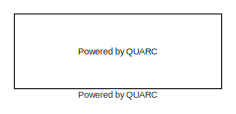
[diagram: root canvas - part 1/3, top left region]
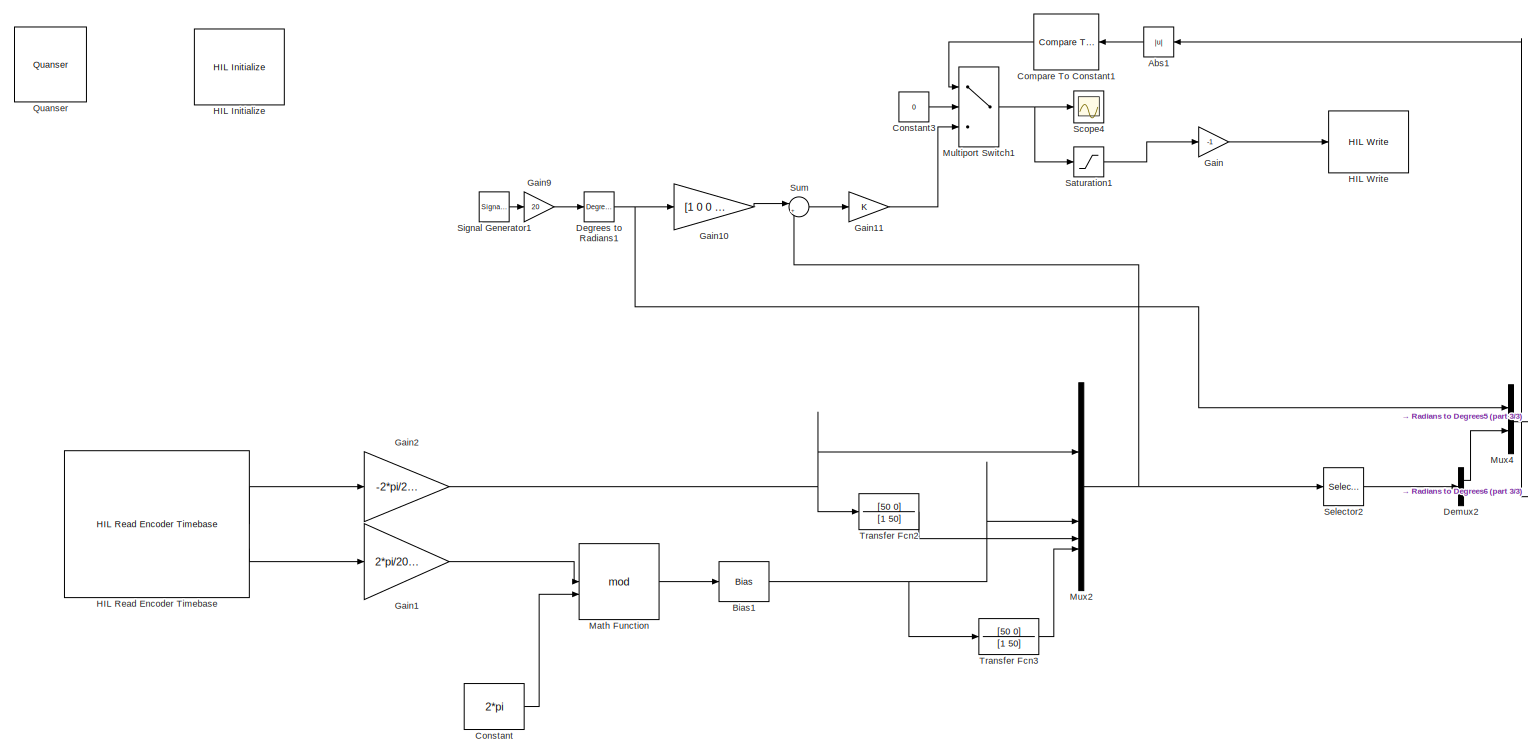
[diagram: root canvas - part 2/3, most of the canvas]
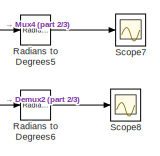
[diagram: root canvas - part 3/3, bottom right region]
MODEL slx_576fdb4bde6e
KIND model
CONFIG AbsTol = auto
CONFIG EnableMultiTasking = on
CONFIG FixedStep = 0.002
CONFIG MaxStep = auto
CONFIG MinStep = auto
CONFIG RelTol = 1e-3
CONFIG SampleTimeConstraint = Unconstrained
CONFIG SolverName = FixedStepDiscrete
CONFIG StartTime = 0.0
CONFIG StopTime = inf
BLOCK [Abs] Abs1
  NameLocation = top
  SaturateOnIntegerOverflow = off
BLOCK [Bias] Bias1
  Bias = -pi
  SaturateOnIntegerOverflow = off
BLOCK [Reference] Compare To Constant1  REF=simulink/Logic and Bit
Operations/Compare
To Constant
  NameLocation = top
  SourceBlock = simulink/Logic and Bit\nOperations/Compare\nTo Constant
  SourceType = Compare To Constant
BLOCK [Constant] Constant
  Value = 2*pi
BLOCK [Constant] Constant3
  Value = 0
BLOCK [Reference] Degrees to Radians1  REF=simulink_extras/Transformations/Degrees to
Radians
  SourceBlock = simulink_extras/Transformations/Degrees to\nRadians
  SourceType = DegreesToRadians
BLOCK [Demux] Demux2
  Outputs = 2
BLOCK [Gain] Gain
  Gain = -1
BLOCK [Gain] Gain1
  Gain = 2*pi/2048
BLOCK [Gain] Gain10
  Gain = [1 0 0 0]
BLOCK [Gain] Gain11
  Gain = K
  Multiplication = Matrix(K*u)
BLOCK [Gain] Gain2
  Gain = -2*pi/2048
BLOCK [Gain] Gain9
  Gain = 20
BLOCK [Reference] HIL Initialize  REF=quarc_library/Data Acquisition/Generic/Configuration/HIL Initialize
  AttributesFormatString = %<object_name> (%<board_type>-%<board_number>)
  SourceBlock = quarc_library/Data Acquisition/Generic/Configuration/HIL Initialize
  SourceProductName = QUARC Targets
  SourceType = HIL Initialize
  UserDataPersistent = on
BLOCK [Reference] HIL Read Encoder Timebase  REF=quarc_library/Data Acquisition/Generic/Timebases/HIL Read Encoder
Timebase
  AttributesFormatString = (%<object_name>)
  SourceBlock = quarc_library/Data Acquisition/Generic/Timebases/HIL Read Encoder\nTimebase
  SourceProductName = QUARC Targets
  SourceType = HIL Read Encoder Timebase
  UserDataPersistent = on
BLOCK [Reference] HIL Write  REF=quarc_library/Data Acquisition/Generic/Immediate I//O/HIL Write
  AttributesFormatString = (%<object_name>)
  SourceBlock = quarc_library/Data Acquisition/Generic/Immediate I//O/HIL Write
  SourceProductName = QUARC Targets
  SourceType = HIL Write
  UserDataPersistent = on
BLOCK [Math] Math Function
  Operator = mod
BLOCK [MultiPortSwitch] Multiport Switch1
  DataPortOrder = Zero-based contiguous
  InputSameDT = off
  Inputs = 2
  SaturateOnIntegerOverflow = off
  zeroidx = on
BLOCK [Mux] Mux2
  DisplayOption = bar
BLOCK [Mux] Mux4
  DisplayOption = bar
  Inputs = 2
BLOCK [Reference] Powered by QUARC  REF=quarc_library/Logos/Powered by QUARC
  SourceBlock = quarc_library/Logos/Powered by QUARC
  SourceProductName = QUARC Targets
  SourceType = Powered by QUARC
BLOCK [Reference] Quanser  REF=quarc_library/Logos/Quanser
  SourceBlock = quarc_library/Logos/Quanser
  SourceProductName = QUARC Targets
  SourceType = Powered by Quanser
BLOCK [Reference] Radians to Degrees5  REF=simulink_extras/Transformations/Radians
to Degrees
  SourceBlock = simulink_extras/Transformations/Radians\nto Degrees
  SourceType = RadiansToDegrees
BLOCK [Reference] Radians to Degrees6  REF=simulink_extras/Transformations/Radians
to Degrees
  SourceBlock = simulink_extras/Transformations/Radians\nto Degrees
  SourceType = RadiansToDegrees
BLOCK [Saturate] Saturation1
  LowerLimit = -10
  UpperLimit = 10
BLOCK [Scope] Scope4
  Floating = off
  NumInputPorts = 1
  ScopeSpecificationString = Simulink.scopes.TimeScopeBlockCfg('CurrentConfiguration', extmgr.ConfigurationSet(extmgr.Configuration('Core','General UI',true),extmgr.Configuration('Core','Source UI',true),extmgr.Configuration('Sources','WiredSimulink',true,'DataLoggingVariableName','ScopeData4'),extmgr.Configuration('Visuals','Time Domain',true,'SerializedDisplays',{struct('MinYLimReal','-23.06982','MaxYLimReal','31.64404','YL...<+1457ch>
BLOCK [Scope] Scope7
  Floating = off
  NumInputPorts = 1
  ScopeSpecificationString = Simulink.scopes.TimeScopeBlockCfg('CurrentConfiguration', extmgr.ConfigurationSet(extmgr.Configuration('Core','General UI',true),extmgr.Configuration('Core','Source UI',true),extmgr.Configuration('Sources','WiredSimulink',true,'DataLoggingVariableName','ScopeData7'),extmgr.Configuration('Visuals','Time Domain',true,'SerializedDisplays',{struct('MinYLimReal','-21.99463','MaxYLimReal','15.13916','YL...<+1505ch>
BLOCK [Scope] Scope8
  Floating = off
  NumInputPorts = 1
  ScopeSpecificationString = Simulink.scopes.TimeScopeBlockCfg('CurrentConfiguration', extmgr.ConfigurationSet(extmgr.Configuration('Core','General UI',true),extmgr.Configuration('Core','Source UI',true),extmgr.Configuration('Sources','WiredSimulink',true,'DataLoggingVariableName','ScopeData8'),extmgr.Configuration('Visuals','Time Domain',true,'SerializedDisplays',{struct('MinYLimReal','-76.62157','MaxYLimReal','105.59937','Y...<+1485ch>
BLOCK [Selector] Selector2
  IndexOptions = Index vector (dialog)
  Indices = [1 2]
  InputPortWidth = 4
  OutputSizes = 1
BLOCK [SignalGenerator] Signal Generator1
  Frequency = 0.125
  WaveForm = square
BLOCK [Sum] Sum
  Inputs = |+-
BLOCK [TransferFcn] Transfer Fcn2
  Denominator = [1 50]
  Numerator = [50 0]
BLOCK [TransferFcn] Transfer Fcn3
  Denominator = [1 50]
  Numerator = [50 0]
LINE Abs1:1 -> Compare To Constant1:1
NET Bias1:1 -> Mux2:2, Transfer Fcn3:1
LINE Compare To Constant1:1 -> Multiport Switch1:1
LINE Constant3:1 -> Multiport Switch1:2
LINE Constant:1 -> Math Function:2
NET Degrees to Radians1:1 -> Gain10:1, Mux4:1
LINE Demux2:1 -> Mux4:2
NET Demux2:2 -> Abs1:1, Radians to Degrees6:1
LINE Gain10:1 -> Sum:1
LINE Gain11:1 -> Multiport Switch1:3
LINE Gain1:1 -> Math Function:1
NET Gain2:1 -> Mux2:1, Transfer Fcn2:1
LINE Gain9:1 -> Degrees to Radians1:1
LINE Gain:1 -> HIL Write:1
LINE HIL Read Encoder Timebase:1 -> Gain2:1
LINE HIL Read Encoder Timebase:2 -> Gain1:1
LINE Math Function:1 -> Bias1:1
NET Multiport Switch1:1 -> Saturation1:1, Scope4:1
NET Mux2:1 -> Selector2:1, Sum:2
LINE Mux4:1 -> Radians to Degrees5:1
LINE Radians to Degrees5:1 -> Scope7:1
LINE Radians to Degrees6:1 -> Scope8:1
LINE Saturation1:1 -> Gain:1
LINE Selector2:1 -> Demux2:1
LINE Signal Generator1:1 -> Gain9:1
LINE Sum:1 -> Gain11:1
LINE Transfer Fcn2:1 -> Mux2:3
LINE Transfer Fcn3:1 -> Mux2:4
note: NET lines group one-source signal fan-out (src -> all destinations, sorted); 1:1 wires keep LINE
